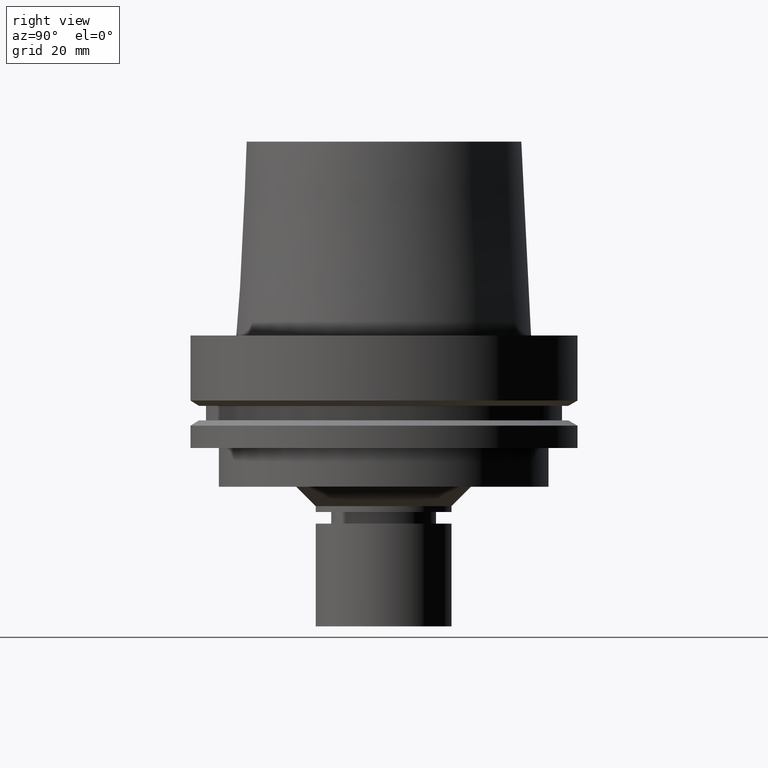
[diagram: clean part render]
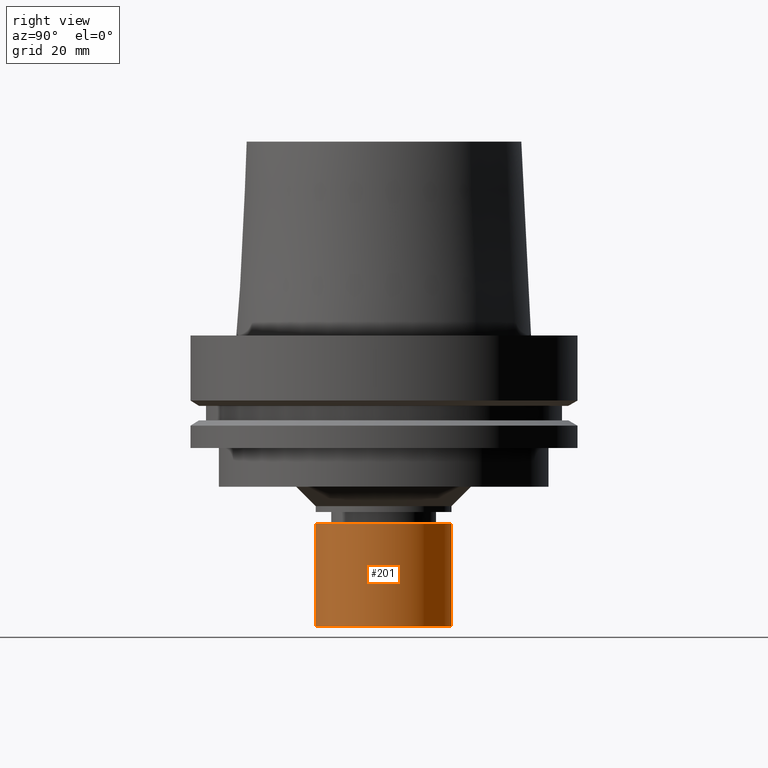
[diagram: same view with one face highlighted and labeled with its STEP entity id]
A machine part, right view. The second image highlights one B-rep face of the part: STEP entity #201.
In plain terms, the highlighted cylindrical surface (bore or boss wall) has radius 17.5 mm, axis along (0, 0, -1).
Its self-contained STEP definition (entity closure, byte-faithful):
#174=EDGE_CURVE('Unnamed[1]',#365,#365,#366,.T.);
#182=EDGE_CURVE('Unnamed[1]',#378,#378,#379,.T.);
#201=ADVANCED_FACE('Unnamed[1]',(#406,#407),#408,.T.);
#365=VERTEX_POINT('',#601);
#366=CIRCLE('',#602,17.5);
#378=VERTEX_POINT('',#617);
#379=CIRCLE('',#618,17.5);
#406=FACE_BOUND('',#651,.T.);
#407=FACE_BOUND('',#652,.T.);
#408=CYLINDRICAL_SURFACE('',#653,17.5);
#601=CARTESIAN_POINT('',(4.59242549680257E-015,17.5,-74.9999999999999));
#602=AXIS2_PLACEMENT_3D('',#814,#815,#816);
#617=CARTESIAN_POINT('',(2.96976942226369E-015,17.5,-48.5000152587891));
#618=AXIS2_PLACEMENT_3D('',#829,#830,#831);
#651=EDGE_LOOP('',(#858));
#652=EDGE_LOOP('',(#859));
#653=AXIS2_PLACEMENT_3D('',#860,#861,#862);
#814=CARTESIAN_POINT('',(4.59242549680257E-015,9.18485099360514E-015,-74.9999999999999));
#815=DIRECTION('',(6.12323399573677E-017,1.22464679914735E-016,-1.0));
#816=DIRECTION('',(-1.23259516440783E-032,1.0,1.22464679914735E-016));
#829=CARTESIAN_POINT('',(2.96976942226369E-015,5.93953884452738E-015,-48.5000152587891));
#830=DIRECTION('',(6.12323399573677E-017,1.22464679914735E-016,-1.0));
#831=DIRECTION('',(-1.23259516440783E-032,1.0,1.22464679914735E-016));
#858=ORIENTED_EDGE('',*,*,#174,.F.);
#859=ORIENTED_EDGE('',*,*,#182,.T.);
#860=CARTESIAN_POINT('',(3.78109745953313E-015,7.56219491906626E-015,-61.7500076293945));
#861=DIRECTION('',(6.12323399573677E-017,1.22464679914735E-016,-1.0));
#862=DIRECTION('',(-1.23259516440783E-032,1.0,1.22464679914735E-016));